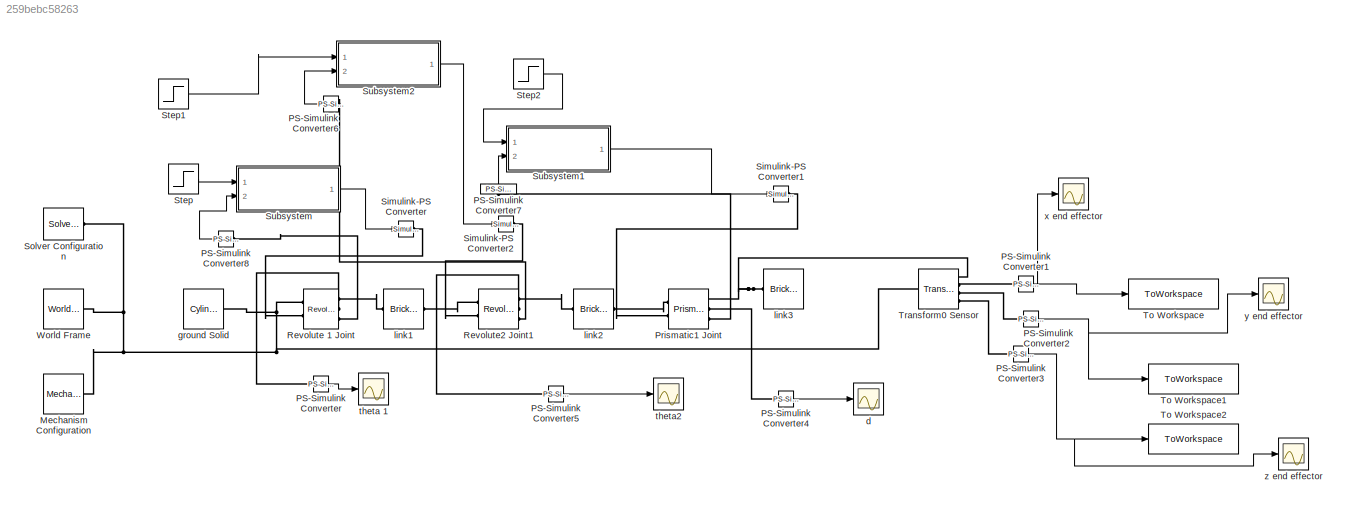
MODEL slx_259bebc58263
KIND model
CONFIG AbsTol = auto
CONFIG EnableMultiTasking = off
CONFIG FixedStep = auto
CONFIG MaxStep = auto
CONFIG MinStep = auto
CONFIG RelTol = 1e-3
CONFIG SampleTimeConstraint = Unconstrained
CONFIG SolverName = VariableStepAuto
CONFIG StartTime = 0.0
CONFIG StopTime = 5
BLOCK [Reference] Mechanism Configuration  REF=sm_lib/Utilities/Mechanism
Configuration
  Ports = [0, 0, 0, 0, 0, 0, 1]
  SourceBlock = sm_lib/Utilities/Mechanism\nConfiguration
  SourceProductBaseCode = MS
  SourceType = Mechanism\nConfiguration
BLOCK [Reference] PS-Simulink Converter  REF=nesl_utility/PS-Simulink
Converter
  Ports = [0, 1, 0, 0, 0, 1]
  SourceBlock = nesl_utility/PS-Simulink\nConverter
  SourceProductBaseCode = PW,SS
  SourceType = PS-Simulink\nConverter
BLOCK [Reference] PS-Simulink Converter1  REF=nesl_utility/PS-Simulink
Converter
  NameLocation = top
  Ports = [0, 1, 0, 0, 0, 1]
  SourceBlock = nesl_utility/PS-Simulink\nConverter
  SourceProductBaseCode = PW,SS
  SourceType = PS-Simulink\nConverter
BLOCK [Reference] PS-Simulink Converter2  REF=nesl_utility/PS-Simulink
Converter
  Ports = [0, 1, 0, 0, 0, 1]
  SourceBlock = nesl_utility/PS-Simulink\nConverter
  SourceProductBaseCode = PW,SS
  SourceType = PS-Simulink\nConverter
BLOCK [Reference] PS-Simulink Converter3  REF=nesl_utility/PS-Simulink
Converter
  Ports = [0, 1, 0, 0, 0, 1]
  SourceBlock = nesl_utility/PS-Simulink\nConverter
  SourceProductBaseCode = PW,SS
  SourceType = PS-Simulink\nConverter
BLOCK [Reference] PS-Simulink Converter4  REF=nesl_utility/PS-Simulink
Converter
  Ports = [0, 1, 0, 0, 0, 1]
  SourceBlock = nesl_utility/PS-Simulink\nConverter
  SourceProductBaseCode = PW,SS
  SourceType = PS-Simulink\nConverter
BLOCK [Reference] PS-Simulink Converter5  REF=nesl_utility/PS-Simulink
Converter
  Ports = [0, 1, 0, 0, 0, 1]
  SourceBlock = nesl_utility/PS-Simulink\nConverter
  SourceProductBaseCode = PW,SS
  SourceType = PS-Simulink\nConverter
BLOCK [Reference] PS-Simulink Converter6  REF=nesl_utility/PS-Simulink
Converter
  NameLocation = top
  Ports = [0, 1, 0, 0, 0, 1]
  SourceBlock = nesl_utility/PS-Simulink\nConverter
  SourceProductBaseCode = PW,SS
  SourceType = PS-Simulink\nConverter
BLOCK [Reference] PS-Simulink Converter7  REF=nesl_utility/PS-Simulink
Converter
  NameLocation = right
  Ports = [0, 1, 0, 0, 0, 1]
  SourceBlock = nesl_utility/PS-Simulink\nConverter
  SourceProductBaseCode = PW,SS
  SourceType = PS-Simulink\nConverter
BLOCK [Reference] PS-Simulink Converter8  REF=nesl_utility/PS-Simulink
Converter
  NameLocation = top
  Ports = [0, 1, 0, 0, 0, 1]
  SourceBlock = nesl_utility/PS-Simulink\nConverter
  SourceProductBaseCode = PW,SS
  SourceType = PS-Simulink\nConverter
BLOCK [Reference] Prismatic1 Joint  REF=sm_lib/Joints/Prismatic
Joint
  Ports = [0, 0, 0, 0, 0, 2, 3]
  SourceBlock = sm_lib/Joints/Prismatic\nJoint
  SourceProductBaseCode = MS
  SourceType = Prismatic\nJoint
BLOCK [Reference] Revolute 1 Joint  REF=sm_lib/Joints/Revolute Joint
  Ports = [0, 0, 0, 0, 0, 2, 3]
  SourceBlock = sm_lib/Joints/Revolute Joint
  SourceProductBaseCode = MS
  SourceType = Revolute Joint
BLOCK [Reference] Revolute2 Joint1  REF=sm_lib/Joints/Revolute Joint
  Ports = [0, 0, 0, 0, 0, 2, 3]
  SourceBlock = sm_lib/Joints/Revolute Joint
  SourceProductBaseCode = MS
  SourceType = Revolute Joint
BLOCK [Reference] Simulink-PS Converter  REF=nesl_utility/Simulink-PS
Converter
  Ports = [1, 0, 0, 0, 0, 0, 1]
  SourceBlock = nesl_utility/Simulink-PS\nConverter
  SourceProductBaseCode = PW,SS
  SourceType = Simulink-PS\nConverter
BLOCK [Reference] Simulink-PS Converter1  REF=nesl_utility/Simulink-PS
Converter
  Ports = [1, 0, 0, 0, 0, 0, 1]
  SourceBlock = nesl_utility/Simulink-PS\nConverter
  SourceProductBaseCode = PW,SS
  SourceType = Simulink-PS\nConverter
BLOCK [Reference] Simulink-PS Converter2  REF=nesl_utility/Simulink-PS
Converter
  Ports = [1, 0, 0, 0, 0, 0, 1]
  SourceBlock = nesl_utility/Simulink-PS\nConverter
  SourceProductBaseCode = PW,SS
  SourceType = Simulink-PS\nConverter
BLOCK [Reference] Solver Configuration  REF=nesl_utility/Solver
Configuration
  Ports = [0, 0, 0, 0, 0, 0, 1]
  SourceBlock = nesl_utility/Solver\nConfiguration
  SourceProductBaseCode = PW,SS
  SourceType = Solver\nConfiguration
BLOCK [Step] Step
  After = 0.872
  SampleTime = 0
  Time = 0
BLOCK [Step] Step1
  After = 0.61
  SampleTime = 0
  Time = 0
BLOCK [Step] Step2
  After = 0.15
  SampleTime = 0
  Time = 0
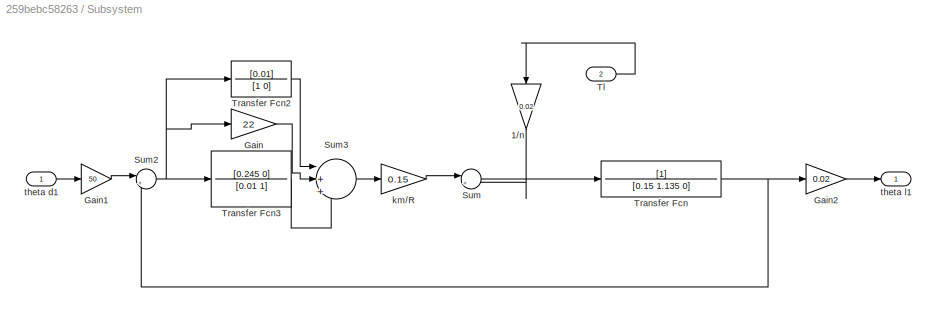
BLOCK [SubSystem] Subsystem
  Ports = [2, 1]
  RequestExecContextInheritance = off
BLOCK [Gain] Subsystem/1//n
  Gain = 0.02
  NameLocation = left
BLOCK [Gain] Subsystem/Gain
  Gain = 22
BLOCK [Gain] Subsystem/Gain1
  Gain = 50
BLOCK [Gain] Subsystem/Gain2
  Gain = 0.02
BLOCK [Sum] Subsystem/Sum
  Inputs = |+-
  Ports = [2, 1]
BLOCK [Sum] Subsystem/Sum2
  Inputs = |+-
  Ports = [2, 1]
BLOCK [Sum] Subsystem/Sum3
  Inputs = |+++
  Ports = [3, 1]
BLOCK [Inport] Subsystem/Tl
  Port = 2
BLOCK [TransferFcn] Subsystem/Transfer Fcn
  Denominator = [0.15 1.135 0]
BLOCK [TransferFcn] Subsystem/Transfer Fcn2
  Denominator = [1 0]
  Numerator = [0.01]
BLOCK [TransferFcn] Subsystem/Transfer Fcn3
  Denominator = [0.01 1]
  Numerator = [0.245 0]
BLOCK [Gain] Subsystem/km//R
  Gain = 0.15
BLOCK [Inport] Subsystem/theta d1
BLOCK [Outport] Subsystem/theta l1
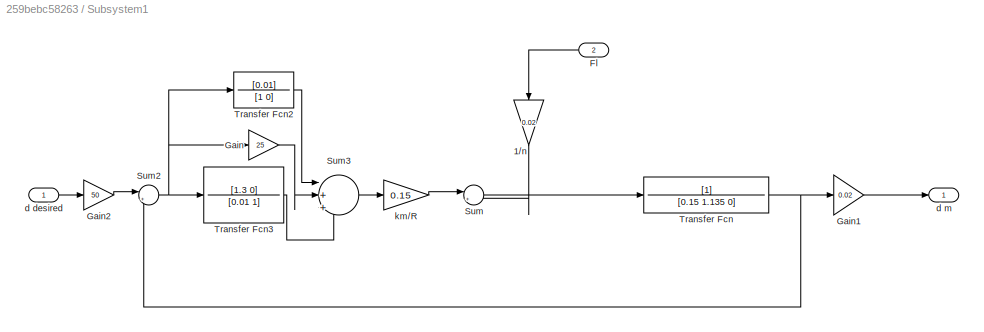
BLOCK [SubSystem] Subsystem1
  Ports = [2, 1]
  RequestExecContextInheritance = off
BLOCK [Gain] Subsystem1/1//n
  Gain = 0.02
  NameLocation = left
BLOCK [Inport] Subsystem1/Fl
  NameLocation = top
  Port = 2
BLOCK [Gain] Subsystem1/Gain
  Gain = 25
BLOCK [Gain] Subsystem1/Gain1
  Gain = 0.02
BLOCK [Gain] Subsystem1/Gain2
  Gain = 50
BLOCK [Sum] Subsystem1/Sum
  Inputs = |+-
  Ports = [2, 1]
BLOCK [Sum] Subsystem1/Sum2
  Inputs = |+-
  Ports = [2, 1]
BLOCK [Sum] Subsystem1/Sum3
  Inputs = |+++
  Ports = [3, 1]
BLOCK [TransferFcn] Subsystem1/Transfer Fcn
  Denominator = [0.15 1.135 0]
BLOCK [TransferFcn] Subsystem1/Transfer Fcn2
  Denominator = [1 0]
  Numerator = [0.01]
BLOCK [TransferFcn] Subsystem1/Transfer Fcn3
  Denominator = [0.01 1]
  Numerator = [1.3 0]
BLOCK [Inport] Subsystem1/d desired
BLOCK [Outport] Subsystem1/d m
BLOCK [Gain] Subsystem1/km//R
  Gain = 0.15
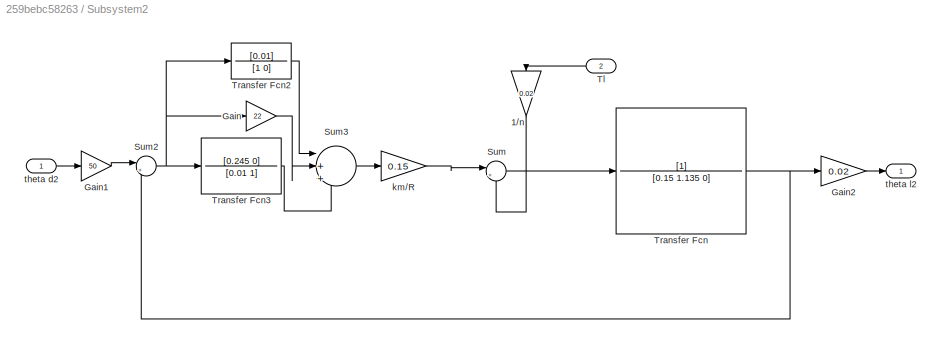
BLOCK [SubSystem] Subsystem2
  Ports = [2, 1]
  RequestExecContextInheritance = off
BLOCK [Gain] Subsystem2/1//n
  Gain = 0.02
  NameLocation = left
BLOCK [Gain] Subsystem2/Gain
  Gain = 22
BLOCK [Gain] Subsystem2/Gain1
  Gain = 50
BLOCK [Gain] Subsystem2/Gain2
  Gain = 0.02
BLOCK [Sum] Subsystem2/Sum
  Inputs = |+-
  Ports = [2, 1]
BLOCK [Sum] Subsystem2/Sum2
  Inputs = |+-
  Ports = [2, 1]
BLOCK [Sum] Subsystem2/Sum3
  Inputs = |+++
  Ports = [3, 1]
BLOCK [Inport] Subsystem2/Tl
  NameLocation = top
  Port = 2
BLOCK [TransferFcn] Subsystem2/Transfer Fcn
  Denominator = [0.15 1.135 0]
BLOCK [TransferFcn] Subsystem2/Transfer Fcn2
  Denominator = [1 0]
  Numerator = [0.01]
BLOCK [TransferFcn] Subsystem2/Transfer Fcn3
  Denominator = [0.01 1]
  Numerator = [0.245 0]
BLOCK [Gain] Subsystem2/km//R
  Gain = 0.15
BLOCK [Inport] Subsystem2/theta d2
BLOCK [Outport] Subsystem2/theta l2
BLOCK [ToWorkspace] To Workspace
  FixptAsFi = on
  MaxDataPoints = inf
  Ports = [1]
  SampleTime = -1
  SaveFormat = Timeseries
  VariableName = x
BLOCK [ToWorkspace] To Workspace1
  FixptAsFi = on
  MaxDataPoints = inf
  Ports = [1]
  SampleTime = -1
  SaveFormat = Timeseries
  VariableName = y
BLOCK [ToWorkspace] To Workspace2
  FixptAsFi = on
  MaxDataPoints = inf
  Ports = [1]
  SampleTime = -1
  SaveFormat = Timeseries
  VariableName = z
BLOCK [Reference] Transform0 Sensor  REF=sm_lib/Frames and
Transforms/Transform
Sensor
  Ports = [0, 0, 0, 0, 0, 1, 4]
  SourceBlock = sm_lib/Frames and\nTransforms/Transform\nSensor
  SourceProductBaseCode = MS
  SourceType = Transform\nSensor
BLOCK [Reference] World Frame  REF=sm_lib/Frames and
Transforms/World Frame
  Ports = [0, 0, 0, 0, 0, 0, 1]
  SourceBlock = sm_lib/Frames and\nTransforms/World Frame
  SourceProductBaseCode = MS
  SourceType = World Frame
BLOCK [Scope] d
  Floating = off
  NumInputPorts = 1
  Ports = [1]
  ScopeSpecificationString = Simulink.scopes.TimeScopeBlockCfg('CurrentConfiguration', extmgr.ConfigurationSet(extmgr.Configuration('Core','General UI',true),extmgr.Configuration('Core','Source UI',true),extmgr.Configuration('Sources','WiredSimulink',true,'DataLoggingVariableName','ScopeData1'),extmgr.Configuration('Visuals','Time Domain',true,'SerializedDisplays',{struct('MinYLimReal','-0.01879','MaxYLimReal','0.16914','YLab...<+1475ch>
BLOCK [Reference] ground Solid  REF=sm_lib/Body Elements/Cylindrical Solid
  NameLocation = top
  Ports = [0, 0, 0, 0, 0, 1]
  SourceBlock = sm_lib/Body Elements/Cylindrical Solid
  SourceProductBaseCode = MS
  SourceType = Cylindrical Solid
BLOCK [Reference] link1  REF=sm_lib/Body Elements/Brick Solid
  Ports = [0, 0, 0, 0, 0, 1, 1]
  SourceBlock = sm_lib/Body Elements/Brick Solid
  SourceProductBaseCode = MS
  SourceType = Brick Solid
BLOCK [Reference] link2  REF=sm_lib/Body Elements/Brick Solid
  Ports = [0, 0, 0, 0, 0, 1, 1]
  SourceBlock = sm_lib/Body Elements/Brick Solid
  SourceProductBaseCode = MS
  SourceType = Brick Solid
BLOCK [Reference] link3  REF=sm_lib/Body Elements/Brick Solid
  Ports = [0, 0, 0, 0, 0, 1]
  SourceBlock = sm_lib/Body Elements/Brick Solid
  SourceProductBaseCode = MS
  SourceType = Brick Solid
BLOCK [Scope] theta 1
  Floating = off
  NumInputPorts = 1
  Ports = [1]
  ScopeSpecificationString = Simulink.scopes.TimeScopeBlockCfg('CurrentConfiguration', extmgr.ConfigurationSet(extmgr.Configuration('Core','General UI',true),extmgr.Configuration('Core','Source UI',true),extmgr.Configuration('Sources','WiredSimulink',true,'DataLoggingVariableName','ScopeData1'),extmgr.Configuration('Visuals','Time Domain',true,'SerializedDisplays',{struct('MinYLimReal','-0.10993','MaxYLimReal','0.98935','YLab...<+1706ch>
BLOCK [Scope] theta2
  Floating = off
  NumInputPorts = 1
  Ports = [1]
  ScopeSpecificationString = Simulink.scopes.TimeScopeBlockCfg('CurrentConfiguration', extmgr.ConfigurationSet(extmgr.Configuration('Core','General UI',true),extmgr.Configuration('Core','Source UI',true),extmgr.Configuration('Sources','WiredSimulink',true,'DataLoggingVariableName','ScopeData3'),extmgr.Configuration('Visuals','Time Domain',true,'SerializedDisplays',{struct('MinYLimReal','-0.0771','MaxYLimReal','0.69386','YLabe...<+1451ch>
BLOCK [Scope] x end effector
  Floating = off
  NumInputPorts = 1
  Ports = [1]
  ScopeSpecificationString = Simulink.scopes.TimeScopeBlockCfg('CurrentConfiguration', extmgr.ConfigurationSet(extmgr.Configuration('Core','General UI',true),extmgr.Configuration('Core','Source UI',true),extmgr.Configuration('Sources','WiredSimulink',true,'DataLoggingVariableName','ScopeData4'),extmgr.Configuration('Visuals','Time Domain',true,'SerializedDisplays',{struct('MinYLimReal','-1.37264','MaxYLimReal','0.4968','YLabe...<+1412ch>
BLOCK [Scope] y end effector
  Floating = off
  NumInputPorts = 1
  Ports = [1]
  ScopeSpecificationString = Simulink.scopes.TimeScopeBlockCfg('CurrentConfiguration', extmgr.ConfigurationSet(extmgr.Configuration('Core','General UI',true),extmgr.Configuration('Core','Source UI',true),extmgr.Configuration('Sources','WiredSimulink',true,'DataLoggingVariableName','ScopeData5'),extmgr.Configuration('Visuals','Time Domain',true,'SerializedDisplays',{struct('MinYLimReal','-0.0891','MaxYLimReal','0.80193','YLabe...<+1379ch>
BLOCK [Scope] z end effector
  Floating = off
  NumInputPorts = 1
  Ports = [1]
  ScopeSpecificationString = Simulink.scopes.TimeScopeBlockCfg('CurrentConfiguration', extmgr.ConfigurationSet(extmgr.Configuration('Core','General UI',true),extmgr.Configuration('Core','Source UI',true),extmgr.Configuration('Sources','WiredSimulink',true),extmgr.Configuration('Visuals','Time Domain',true,'SerializedDisplays',{struct('MinYLimReal','0.10358','MaxYLimReal','2.16776','YLabelReal','','MinYLimMag','0.10358','MaxYL...<+1340ch>
NET PS-Simulink Converter1:1 -> To Workspace:1, x end effector:1
NET PS-Simulink Converter2:1 -> To Workspace1:1, y end effector:1
NET PS-Simulink Converter3:1 -> To Workspace2:1, z end effector:1
LINE PS-Simulink Converter4:1 -> d:1
LINE PS-Simulink Converter5:1 -> theta2:1
LINE PS-Simulink Converter6:1 -> Subsystem2:2
LINE PS-Simulink Converter7:1 -> Subsystem1:2
LINE PS-Simulink Converter8:1 -> Subsystem:2
LINE PS-Simulink Converter:1 -> theta 1:1
LINE Step1:1 -> Subsystem2:1
LINE Step2:1 -> Subsystem1:1
LINE Step:1 -> Subsystem:1
LINE Subsystem/1//n:1 -> Subsystem/Sum:2
LINE Subsystem/Gain1:1 -> Subsystem/Sum2:1
LINE Subsystem/Gain2:1 -> Subsystem/theta l1:1
LINE Subsystem/Gain:1 -> Subsystem/Sum3:2
NET Subsystem/Sum2:1 -> Subsystem/Gain:1, Subsystem/Transfer Fcn2:1, Subsystem/Transfer Fcn3:1
LINE Subsystem/Sum3:1 -> Subsystem/km//R:1
LINE Subsystem/Sum:1 -> Subsystem/Transfer Fcn:1
LINE Subsystem/Tl:1 -> Subsystem/1//n:1
LINE Subsystem/Transfer Fcn2:1 -> Subsystem/Sum3:1
LINE Subsystem/Transfer Fcn3:1 -> Subsystem/Sum3:3
NET Subsystem/Transfer Fcn:1 -> Subsystem/Gain2:1, Subsystem/Sum2:2
LINE Subsystem/km//R:1 -> Subsystem/Sum:1
LINE Subsystem/theta d1:1 -> Subsystem/Gain1:1
LINE Subsystem1/1//n:1 -> Subsystem1/Sum:2
LINE Subsystem1/Fl:1 -> Subsystem1/1//n:1
LINE Subsystem1/Gain1:1 -> Subsystem1/d m:1
LINE Subsystem1/Gain2:1 -> Subsystem1/Sum2:1
LINE Subsystem1/Gain:1 -> Subsystem1/Sum3:2
NET Subsystem1/Sum2:1 -> Subsystem1/Gain:1, Subsystem1/Transfer Fcn2:1, Subsystem1/Transfer Fcn3:1
LINE Subsystem1/Sum3:1 -> Subsystem1/km//R:1
LINE Subsystem1/Sum:1 -> Subsystem1/Transfer Fcn:1
LINE Subsystem1/Transfer Fcn2:1 -> Subsystem1/Sum3:1
LINE Subsystem1/Transfer Fcn3:1 -> Subsystem1/Sum3:3
NET Subsystem1/Transfer Fcn:1 -> Subsystem1/Gain1:1, Subsystem1/Sum2:2
LINE Subsystem1/d desired:1 -> Subsystem1/Gain2:1
LINE Subsystem1/km//R:1 -> Subsystem1/Sum:1
LINE Subsystem1:1 -> Simulink-PS Converter1:1
LINE Subsystem2/1//n:1 -> Subsystem2/Sum:2
LINE Subsystem2/Gain1:1 -> Subsystem2/Sum2:1
LINE Subsystem2/Gain2:1 -> Subsystem2/theta l2:1
LINE Subsystem2/Gain:1 -> Subsystem2/Sum3:2
NET Subsystem2/Sum2:1 -> Subsystem2/Gain:1, Subsystem2/Transfer Fcn2:1, Subsystem2/Transfer Fcn3:1
LINE Subsystem2/Sum3:1 -> Subsystem2/km//R:1
LINE Subsystem2/Sum:1 -> Subsystem2/Transfer Fcn:1
LINE Subsystem2/Tl:1 -> Subsystem2/1//n:1
LINE Subsystem2/Transfer Fcn2:1 -> Subsystem2/Sum3:1
LINE Subsystem2/Transfer Fcn3:1 -> Subsystem2/Sum3:3
NET Subsystem2/Transfer Fcn:1 -> Subsystem2/Gain2:1, Subsystem2/Sum2:2
LINE Subsystem2/km//R:1 -> Subsystem2/Sum:1
LINE Subsystem2/theta d2:1 -> Subsystem2/Gain1:1
LINE Subsystem2:1 -> Simulink-PS Converter2:1
LINE Subsystem:1 -> Simulink-PS Converter:1
PNET net1: Mechanism Configuration:RConn1 -- Revolute 1 Joint:LConn1 -- Solver Configuration:RConn1 -- Transform0 Sensor:LConn1 -- World Frame:RConn1 -- ground Solid:LConn1
PLINE PS-Simulink Converter1:LConn1 -- Transform0 Sensor:RConn2
PLINE PS-Simulink Converter2:LConn1 -- Transform0 Sensor:RConn3
PLINE PS-Simulink Converter3:LConn1 -- Transform0 Sensor:RConn4
PLINE PS-Simulink Converter4:LConn1 -- Prismatic1 Joint:RConn2
PLINE PS-Simulink Converter5:LConn1 -- Revolute2 Joint1:RConn2
PLINE PS-Simulink Converter6:LConn1 -- Revolute2 Joint1:RConn3
PLINE PS-Simulink Converter7:LConn1 -- Prismatic1 Joint:RConn3
PLINE PS-Simulink Converter8:LConn1 -- Revolute 1 Joint:RConn3
PLINE PS-Simulink Converter:LConn1 -- Revolute 1 Joint:RConn2
PLINE Prismatic1 Joint:LConn1 -- link2:RConn1
PLINE Prismatic1 Joint:LConn2 -- Simulink-PS Converter1:RConn1
PNET net2: Prismatic1 Joint:RConn1 -- Transform0 Sensor:RConn1 -- link3:LConn1
PLINE Revolute 1 Joint:LConn2 -- Simulink-PS Converter:RConn1
PLINE Revolute 1 Joint:RConn1 -- link1:LConn1
PLINE Revolute2 Joint1:LConn1 -- link1:RConn1
PLINE Revolute2 Joint1:LConn2 -- Simulink-PS Converter2:RConn1
PLINE Revolute2 Joint1:RConn1 -- link2:LConn1
note: NET lines group one-source signal fan-out (src -> all destinations, sorted); 1:1 wires keep LINE; PNET lines group multi-terminal physical nets as a canonical sorted terminal list (undirected conserving connections); 2-terminal nets keep the pairwise PLINE form
